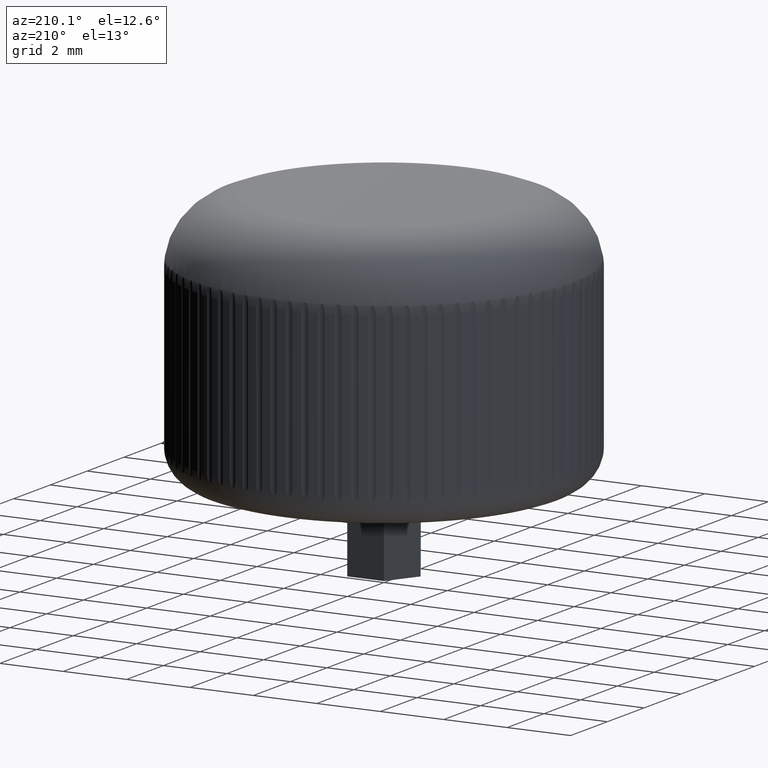
[diagram: clean part render]
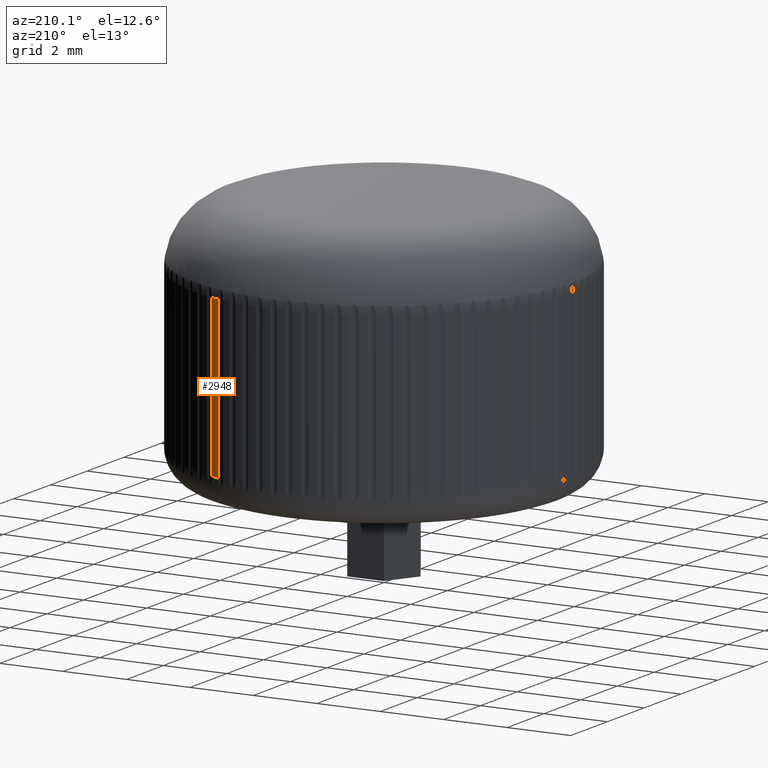
[diagram: same view with one face highlighted and labeled with its STEP entity id]
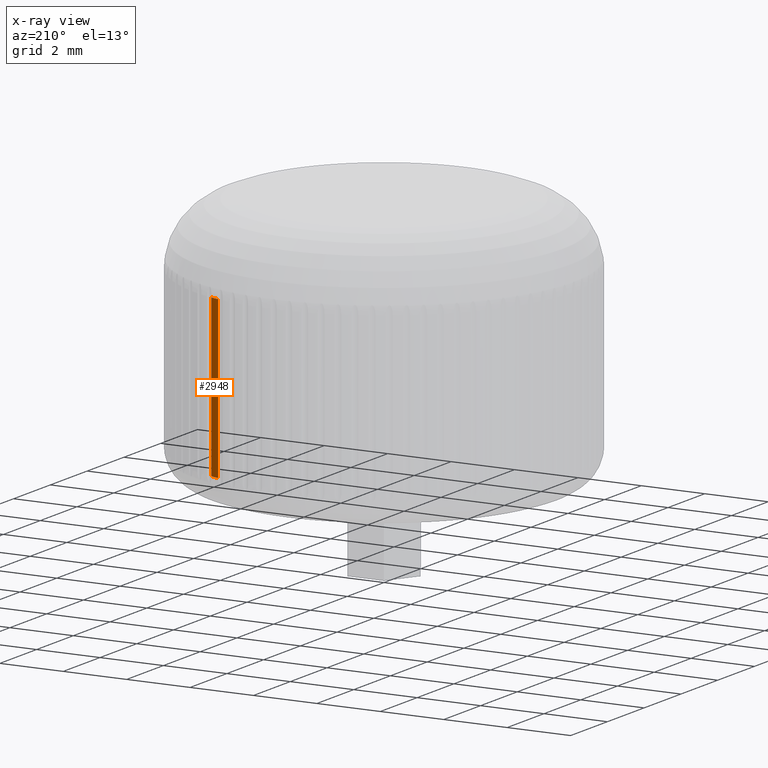
[diagram: x-ray of the same camera — body ghosted, the highlighted face saturated]
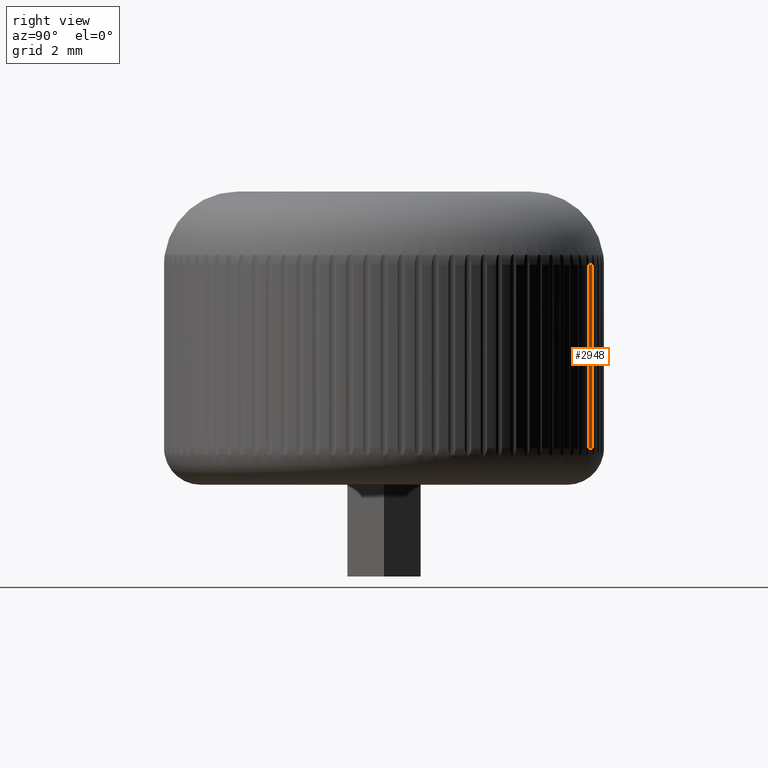
[diagram: same view with one face highlighted and labeled with its STEP entity id]
A machine part, auxiliary view. The second image highlights one B-rep face of the part: STEP entity #2948.
The next image is the same camera in x-ray: the body ghosted, the highlighted face saturated — about 0% of this face is hidden behind the body in this view.
A second angle (right view) of the same face is appended — the face is thin or edge-on in the first view.
In plain terms, the highlighted cylindrical surface (partial cylindrical patch) has radius 6 mm, axis along (-0, -0, -1).
Its self-contained STEP definition (entity closure, byte-faithful):
#130 = VERTEX_POINT ( 'NONE', #7201 ) ;
#311 = ORIENTED_EDGE ( 'NONE', *, *, #6833, .T. ) ;
#624 = CARTESIAN_POINT ( 'NONE',  ( 1.945308802927183400, 5.675894084745960000, 2.749999999999998200 ) ) ;
#793 = DIRECTION ( 'NONE',  ( 1.000000000000000000, -7.283063041541026900E-014, 0.0000000000000000000 ) ) ;
#1745 = LINE ( 'NONE', #624, #3559 ) ;
#2291 = FACE_OUTER_BOUND ( 'NONE', #2814, .T. ) ;
#2595 = CARTESIAN_POINT ( 'NONE',  ( 2.206973917187042800, 5.579360727615315900, 1.000000000022511800 ) ) ;
#2814 = EDGE_LOOP ( 'NONE', ( #6018, #311, #3103, #7525 ) ) ;
#2948 = ADVANCED_FACE ( 'NONE', ( #2291 ), #6421, .T. ) ;
#2997 = DIRECTION ( 'NONE',  ( 0.0000000000000000000, 0.0000000000000000000, 1.000000000000000000 ) ) ;
#3103 = ORIENTED_EDGE ( 'NONE', *, *, #5140, .T. ) ;
#3514 = CARTESIAN_POINT ( 'NONE',  ( 0.0000000000000000000, 0.0000000000000000000, 8.000000000000000000 ) ) ;
#3559 = VECTOR ( 'NONE', #2997, 1000.000000000000000 ) ;
#3602 = CARTESIAN_POINT ( 'NONE',  ( 2.206973917187022000, 5.579360727615338100, 2.749999999999998200 ) ) ;
#3626 = DIRECTION ( 'NONE',  ( -1.000000000000000000, 0.0000000000000000000, 0.0000000000000000000 ) ) ;
#4131 = LINE ( 'NONE', #3602, #6832 ) ;
#5112 = AXIS2_PLACEMENT_3D ( 'NONE', #3514, #7223, #3626 ) ;
#5126 = DIRECTION ( 'NONE',  ( 0.0000000000000000000, 0.0000000000000000000, 1.000000000000000000 ) ) ;
#5140 = EDGE_CURVE ( 'NONE', #6443, #7845, #7829, .T. ) ;
#5508 = VERTEX_POINT ( 'NONE', #7628 ) ;
#5543 = EDGE_CURVE ( 'NONE', #130, #5508, #7068, .T. ) ;
#5797 = CARTESIAN_POINT ( 'NONE',  ( 0.0000000000000000000, 0.0000000000000000000, 6.000000000000000000 ) ) ;
#5893 = AXIS2_PLACEMENT_3D ( 'NONE', #6361, #5126, #7637 ) ;
#6018 = ORIENTED_EDGE ( 'NONE', *, *, #5543, .T. ) ;
#6361 = CARTESIAN_POINT ( 'NONE',  ( 0.0000000000000000000, 0.0000000000000000000, 1.000000000000000000 ) ) ;
#6421 = CYLINDRICAL_SURFACE ( 'NONE', #5112, 6.000000000000000900 ) ;
#6443 = VERTEX_POINT ( 'NONE', #2595 ) ;
#6832 = VECTOR ( 'NONE', #7887, 1000.000000000000000 ) ;
#6833 = EDGE_CURVE ( 'NONE', #5508, #6443, #4131, .T. ) ;
#6844 = EDGE_CURVE ( 'NONE', #7845, #130, #1745, .T. ) ;
#6973 = AXIS2_PLACEMENT_3D ( 'NONE', #5797, #6996, #793 ) ;
#6996 = DIRECTION ( 'NONE',  ( -0.0000000000000000000, -0.0000000000000000000, -1.000000000000000000 ) ) ;
#7068 = CIRCLE ( 'NONE', #6973, 6.000000000000000900 ) ;
#7201 = CARTESIAN_POINT ( 'NONE',  ( 1.945308802927179000, 5.675894084745947600, 6.000000000000000000 ) ) ;
#7223 = DIRECTION ( 'NONE',  ( -0.0000000000000000000, -0.0000000000000000000, -1.000000000000000000 ) ) ;
#7442 = CARTESIAN_POINT ( 'NONE',  ( 1.945308802927149200, 5.675894084745957400, 1.000000000000000000 ) ) ;
#7525 = ORIENTED_EDGE ( 'NONE', *, *, #6844, .T. ) ;
#7628 = CARTESIAN_POINT ( 'NONE',  ( 2.206973917187017100, 5.579360727615325600, 6.000000000000000000 ) ) ;
#7637 = DIRECTION ( 'NONE',  ( 1.000000000000000000, 0.0000000000000000000, 0.0000000000000000000 ) ) ;
#7829 = CIRCLE ( 'NONE', #5893, 6.000000000000000900 ) ;
#7845 = VERTEX_POINT ( 'NONE', #7442 ) ;
#7887 = DIRECTION ( 'NONE',  ( -0.0000000000000000000, -0.0000000000000000000, -1.000000000000000000 ) ) ;